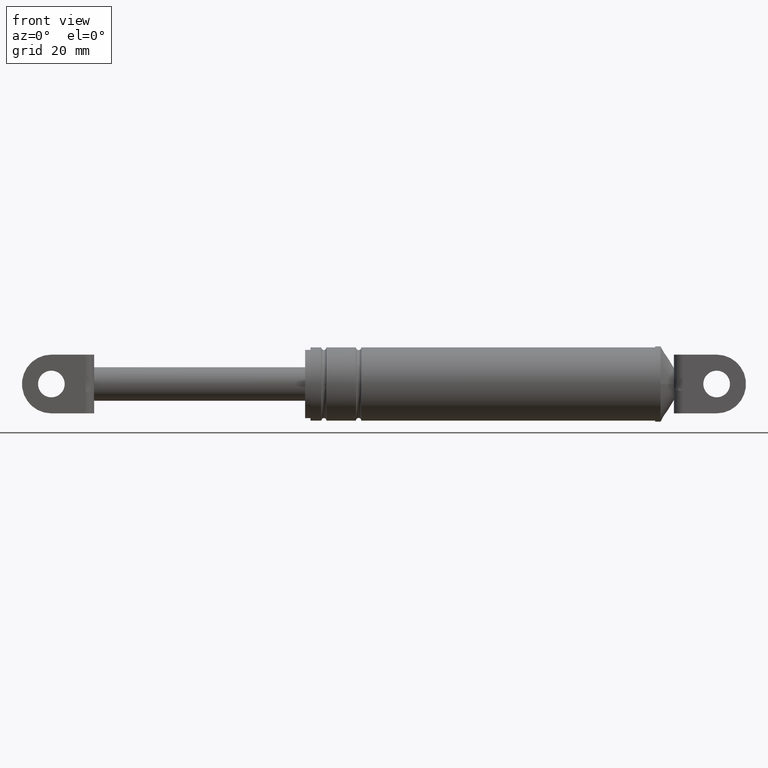
[diagram: clean part render]
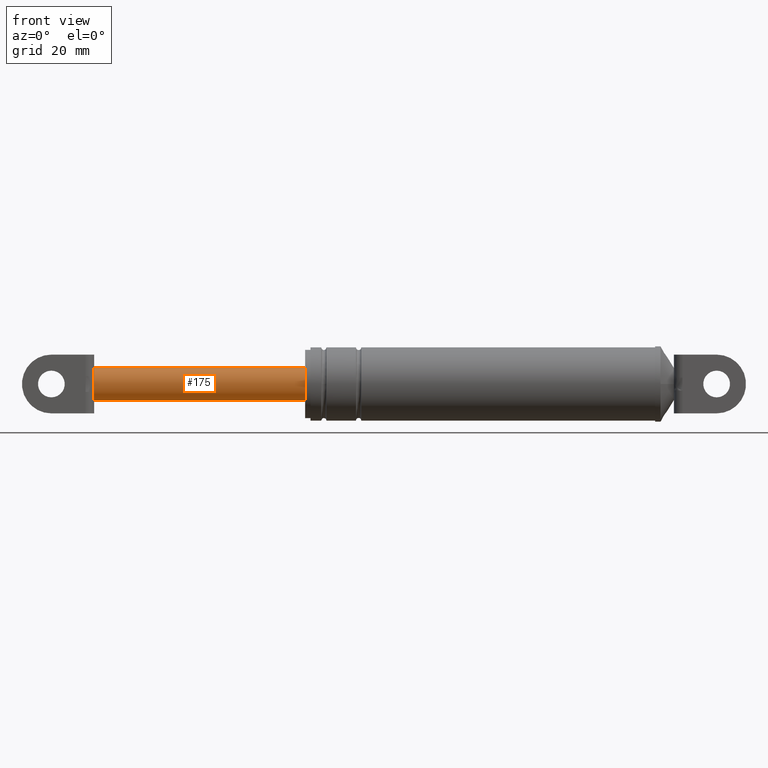
[diagram: same view with one face highlighted and labeled with its STEP entity id]
A machine part, front view. The second image highlights one B-rep face of the part: STEP entity #175.
In plain terms, the highlighted cylindrical surface (edge-blend (fillet) strip) has radius 6.25 mm, axis along (1, 0, 0).
Its self-contained STEP definition (entity closure, byte-faithful):
#175=ADVANCED_FACE('',(#817),#816,.T.);
#816=CYLINDRICAL_SURFACE('',#1374,6.25000000000E+000);
#817=FACE_OUTER_BOUND('',#1375,.T.);
#1371=CARTESIAN_POINT('',(0.00000000000E+000,0.00000000000E+000,1.70729320502E+002));
#1372=DIRECTION('',(1.00000000000E+000,-0.00000000000E+000,-0.00000000000E+000));
#1373=DIRECTION('',(0.00000000000E+000,0.00000000000E+000,-1.00000000000E+000));
#1374=AXIS2_PLACEMENT_3D('',#1371,#1372,#1373);
#1375=EDGE_LOOP('',(#1694,#1695,#1696,#1697,#1698,#1699));
#1694=ORIENTED_EDGE('',*,*,#1815,.F.);
#1695=ORIENTED_EDGE('',*,*,#1803,.F.);
#1696=ORIENTED_EDGE('',*,*,#1824,.F.);
#1697=ORIENTED_EDGE('',*,*,#1860,.T.);
#1698=ORIENTED_EDGE('',*,*,#1849,.T.);
#1699=ORIENTED_EDGE('',*,*,#1861,.F.);
#1803=EDGE_CURVE('',#2541,#2526,#2548,.T.);
#1815=EDGE_CURVE('',#2526,#2630,#2631,.T.);
#1824=EDGE_CURVE('',#2685,#2541,#2692,.T.);
#1849=EDGE_CURVE('',#2854,#2855,#2856,.T.);
#1860=EDGE_CURVE('',#2685,#2854,#2926,.T.);
#1861=EDGE_CURVE('',#2630,#2855,#2932,.T.);
#2526=VERTEX_POINT('',#3362);
#2541=VERTEX_POINT('',#3379);
#2548=CIRCLE('',#3387,6.25000000000E+000);
#2630=VERTEX_POINT('',#3433);
#2631=CIRCLE('',#3437,6.25000000000E+000);
#2685=VERTEX_POINT('',#3469);
#2692=CIRCLE('',#3477,6.25000000000E+000);
#2854=VERTEX_POINT('',#3578);
#2855=VERTEX_POINT('',#3579);
#2856=CIRCLE('',#3583,6.25000000000E+000);
#2926=(BOUNDED_CURVE() B_SPLINE_CURVE(1,(#3620,#3621),.UNSPECIFIED.,.F.,.F.) B_SPLINE_CURVE_WITH_KNOTS((2,2),(8.33333332085E-002,9.16666666563E-001),.UNSPECIFIED.) CURVE() GEOMETRIC_REPRESENTATION_ITEM() RATIONAL_B_SPLINE_CURVE((1.00000000000E+000,1.00000000000E+000)) REPRESENTATION_ITEM('') );
#2932=(BOUNDED_CURVE() B_SPLINE_CURVE(1,(#3622,#3623),.UNSPECIFIED.,.F.,.F.) B_SPLINE_CURVE_WITH_KNOTS((2,2),(8.33333333333E-002,9.16666666667E-001),.UNSPECIFIED.) CURVE() GEOMETRIC_REPRESENTATION_ITEM() RATIONAL_B_SPLINE_CURVE((7.50000000000E-001,7.50000000000E-001)) REPRESENTATION_ITEM('') );
#3362=CARTESIAN_POINT('',(1.04446942787E+002,-5.49999700000E+000,1.73697911582E+002));
#3379=CARTESIAN_POINT('',(1.04446942787E+002,-5.49999700000E+000,1.67760729422E+002));
#3384=CARTESIAN_POINT('',(1.04446942787E+002,0.00000000000E+000,1.70729320502E+002));
#3385=DIRECTION('',(-1.00000000000E+000,0.00000000000E+000,0.00000000000E+000));
#3386=DIRECTION('',(-0.00000000000E+000,-0.00000000000E+000,-1.00000000000E+000));
#3387=AXIS2_PLACEMENT_3D('',#3384,#3385,#3386);
#3433=CARTESIAN_POINT('',(1.04446942787E+002,7.89135247850E-007,1.76979320502E+002));
#3434=CARTESIAN_POINT('',(1.04446942787E+002,0.00000000000E+000,1.70729320502E+002));
#3435=DIRECTION('',(-1.00000000000E+000,0.00000000000E+000,0.00000000000E+000));
#3436=DIRECTION('',(-0.00000000000E+000,-0.00000000000E+000,-1.00000000000E+000));
#3437=AXIS2_PLACEMENT_3D('',#3434,#3435,#3436);
#3469=CARTESIAN_POINT('',(1.04446942787E+002,-4.27327916267E-012,1.64479320502E+002));
#3474=CARTESIAN_POINT('',(1.04446942787E+002,0.00000000000E+000,1.70729320502E+002));
#3475=DIRECTION('',(-1.00000000000E+000,0.00000000000E+000,0.00000000000E+000));
#3476=DIRECTION('',(-0.00000000000E+000,8.79999520000E-001,-4.74974572793E-001));
#3477=AXIS2_PLACEMENT_3D('',#3474,#3475,#3476);
#3578=CARTESIAN_POINT('',(1.83446942787E+002,0.00000000000E+000,1.64479320502E+002));
#3579=CARTESIAN_POINT('',(1.83446942787E+002,0.00000000000E+000,1.76979320502E+002));
#3580=CARTESIAN_POINT('',(1.83446942787E+002,0.00000000000E+000,1.70729320502E+002));
#3581=DIRECTION('',(-1.00000000000E+000,0.00000000000E+000,0.00000000000E+000));
#3582=DIRECTION('',(0.00000000000E+000,-1.22460635382E-016,1.00000000000E+000));
#3583=AXIS2_PLACEMENT_3D('',#3580,#3581,#3582);
#3620=CARTESIAN_POINT('',(1.04446942775E+002,0.00000000000E+000,1.64479320502E+002));
#3621=CARTESIAN_POINT('',(1.83446942777E+002,0.00000000000E+000,1.64479320502E+002));
#3622=CARTESIAN_POINT('',(1.04446942787E+002,0.00000000000E+000,1.76979320502E+002));
#3623=CARTESIAN_POINT('',(1.83446942787E+002,0.00000000000E+000,1.76979320502E+002));